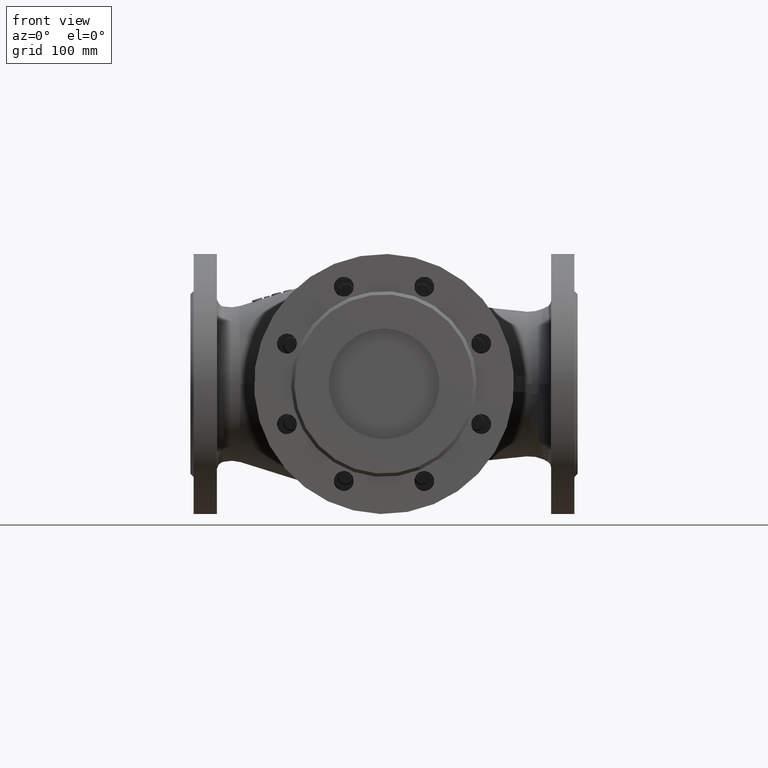
[diagram: clean part render]
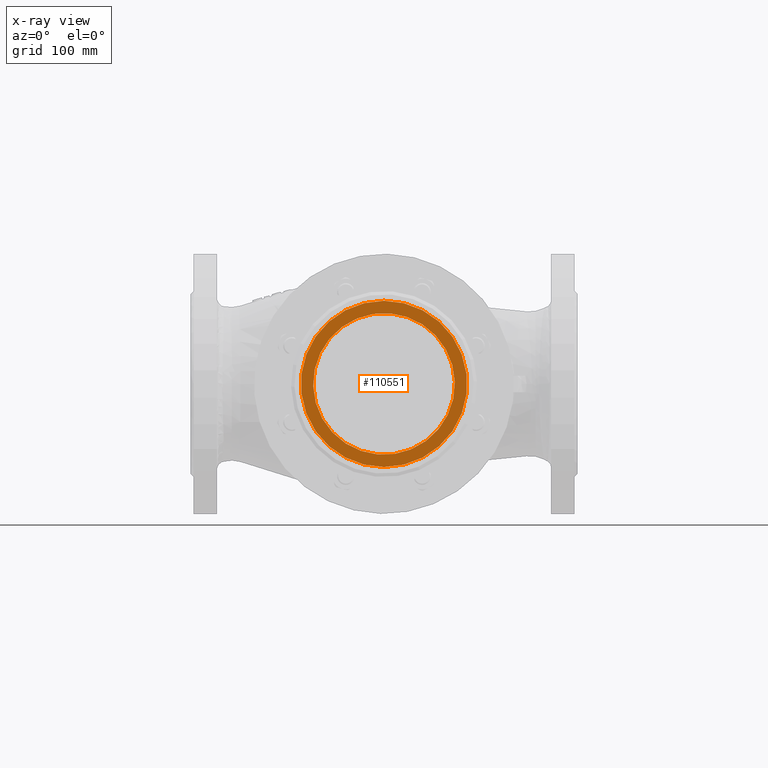
[diagram: x-ray — body ghosted, one internal face saturated and labeled with its STEP entity id]
A machine part, front view, then the same camera in x-ray: the body is ghosted and one INTERNAL B-rep face — a face not visible from any outside direction — is saturated and labeled: STEP entity #110551.
In plain terms, the highlighted planar face has unit normal (0, -1, -0).
Its self-contained STEP definition (entity closure, byte-faithful):
#3842 = CARTESIAN_POINT ( 'NONE',  ( 1.243449787580175500E-014, -112.0000000000000100, 75.09999999999998000 ) ) ;
#11780 = DIRECTION ( 'NONE',  ( 1.110223024625156500E-016, -1.000000000000000000, -6.818041994409180400E-017 ) ) ;
#15921 = EDGE_LOOP ( 'NONE', ( #20342, #160513 ) ) ;
#16216 = AXIS2_PLACEMENT_3D ( 'NONE', #94395, #11780, #108287 ) ;
#19665 = ORIENTED_EDGE ( 'NONE', *, *, #54864, .T. ) ;
#20342 = ORIENTED_EDGE ( 'NONE', *, *, #176202, .T. ) ;
#24280 = VERTEX_POINT ( 'NONE', #3842 ) ;
#34186 = AXIS2_PLACEMENT_3D ( 'NONE', #79362, #175899, #93252 ) ;
#38847 = CIRCLE ( 'NONE', #34186, 64.00000000000000000 ) ;
#39176 = CARTESIAN_POINT ( 'NONE',  ( 1.243449787580175300E-014, -112.0000000000000000, -7.636207033738283300E-015 ) ) ;
#42364 = CIRCLE ( 'NONE', #44242, 64.00000000000000000 ) ;
#44242 = AXIS2_PLACEMENT_3D ( 'NONE', #80962, #177509, #94856 ) ;
#53623 = CARTESIAN_POINT ( 'NONE',  ( 3.514956170361416700E-015, -112.0000000000000000, -75.10000000000000900 ) ) ;
#54864 = EDGE_CURVE ( 'NONE', #117030, #110800, #38847, .T. ) ;
#56253 = CARTESIAN_POINT ( 'NONE',  ( -24.49173967136644900, -112.0000000000000000, 59.12829008072205300 ) ) ;
#66873 = PLANE ( 'NONE',  #127197 ) ;
#79362 = CARTESIAN_POINT ( 'NONE',  ( 1.243449787580175300E-014, -112.0000000000000000, -7.636207033738284900E-015 ) ) ;
#80302 = DIRECTION ( 'NONE',  ( 1.110223024625156500E-016, -1.000000000000000000, -6.818041994409180400E-017 ) ) ;
#80962 = CARTESIAN_POINT ( 'NONE',  ( 1.243449787580175300E-014, -112.0000000000000000, -7.636207033738284900E-015 ) ) ;
#93252 = DIRECTION ( 'NONE',  ( 1.000000000000000000, 2.168404344971008900E-016, 0.0000000000000000000 ) ) ;
#94395 = CARTESIAN_POINT ( 'NONE',  ( 1.243449787580175300E-014, -112.0000000000000000, -7.636207033738283300E-015 ) ) ;
#94641 = DIRECTION ( 'NONE',  ( 2.465190328815661900E-032, -1.236915711753496600E-016, 1.000000000000000000 ) ) ;
#94856 = DIRECTION ( 'NONE',  ( 1.000000000000000000, 2.168404344971008900E-016, 0.0000000000000000000 ) ) ;
#96443 = CARTESIAN_POINT ( 'NONE',  ( 24.49173967136648500, -112.0000000000000000, -59.12829008072206700 ) ) ;
#108287 = DIRECTION ( 'NONE',  ( 2.051589820918493700E-032, -1.847907830601126100E-016, 1.000000000000000000 ) ) ;
#109156 = CIRCLE ( 'NONE', #137783, 75.09999999999999400 ) ;
#110551 = ADVANCED_FACE ( 'NONE', ( #131116, #126782 ), #66873, .T. ) ;
#110800 = VERTEX_POINT ( 'NONE', #96443 ) ;
#117030 = VERTEX_POINT ( 'NONE', #56253 ) ;
#122041 = EDGE_CURVE ( 'NONE', #129270, #24280, #109156, .T. ) ;
#125001 = CIRCLE ( 'NONE', #16216, 75.09999999999999400 ) ;
#126782 = FACE_BOUND ( 'NONE', #165387, .T. ) ;
#127197 = AXIS2_PLACEMENT_3D ( 'NONE', #39176, #177298, #94641 ) ;
#127762 = EDGE_CURVE ( 'NONE', #110800, #117030, #42364, .T. ) ;
#129270 = VERTEX_POINT ( 'NONE', #53623 ) ;
#131116 = FACE_OUTER_BOUND ( 'NONE', #15921, .T. ) ;
#137783 = AXIS2_PLACEMENT_3D ( 'NONE', #162991, #80302, #176854 ) ;
#156402 = ORIENTED_EDGE ( 'NONE', *, *, #127762, .T. ) ;
#160513 = ORIENTED_EDGE ( 'NONE', *, *, #122041, .T. ) ;
#162991 = CARTESIAN_POINT ( 'NONE',  ( 1.243449787580175300E-014, -112.0000000000000000, -7.636207033738283300E-015 ) ) ;
#165387 = EDGE_LOOP ( 'NONE', ( #19665, #156402 ) ) ;
#175899 = DIRECTION ( 'NONE',  ( -1.110223024625156500E-016, 1.000000000000000000, 6.818041994409180400E-017 ) ) ;
#176202 = EDGE_CURVE ( 'NONE', #24280, #129270, #125001, .T. ) ;
#176854 = DIRECTION ( 'NONE',  ( 2.051589820918493700E-032, -1.847907830601126100E-016, 1.000000000000000000 ) ) ;
#177298 = DIRECTION ( 'NONE',  ( 1.110223024625156500E-016, -1.000000000000000000, -1.236915711753496600E-016 ) ) ;
#177509 = DIRECTION ( 'NONE',  ( -1.110223024625156500E-016, 1.000000000000000000, 6.818041994409180400E-017 ) ) ;